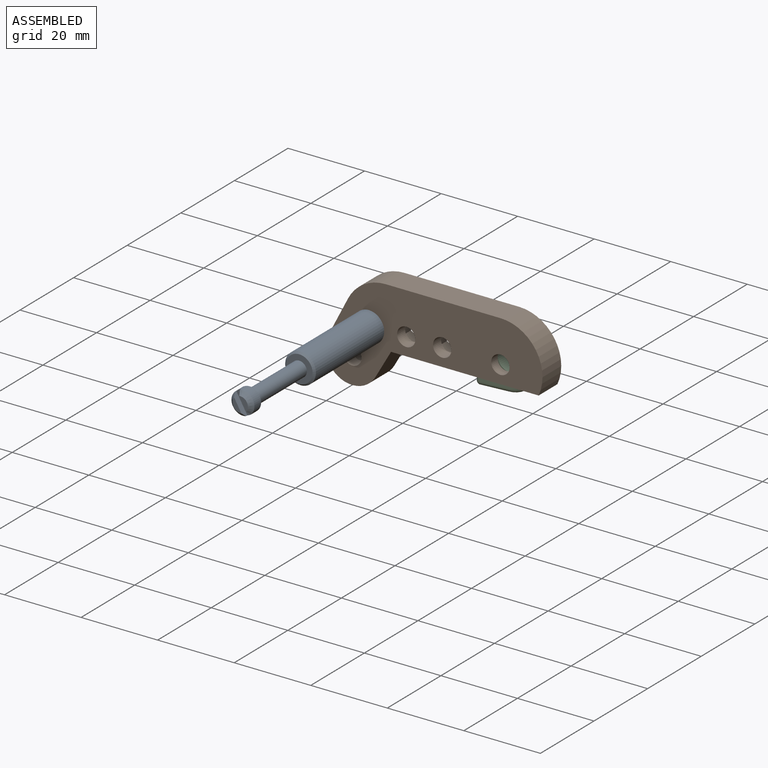
[diagram: assembled view]
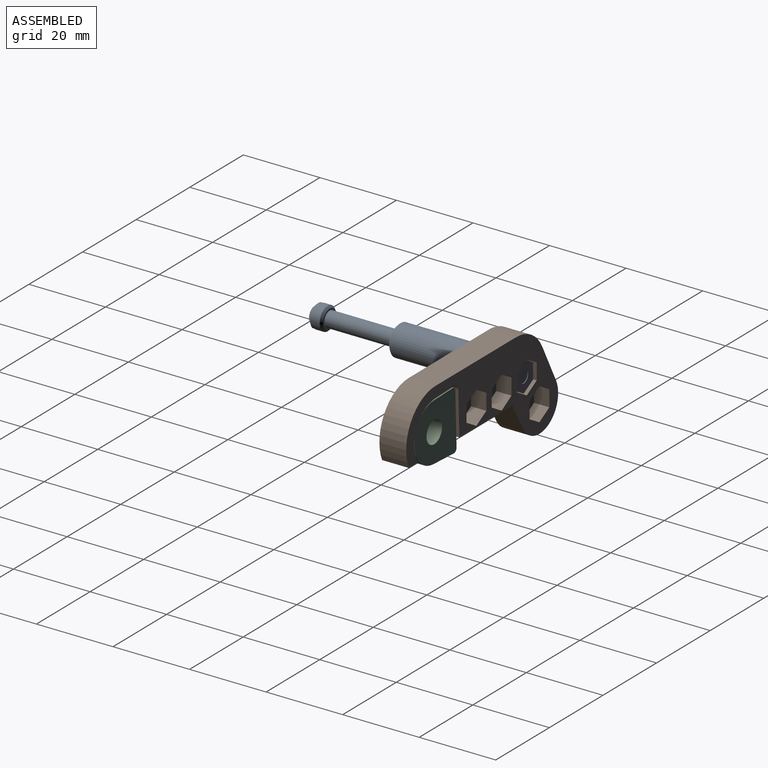
[diagram: assembled view, second angle]
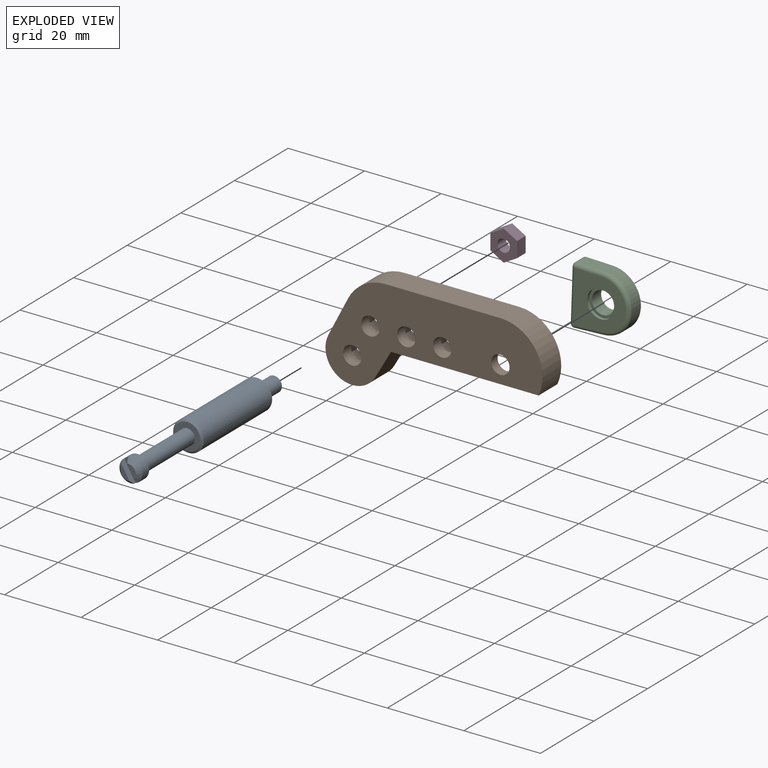
[diagram: exploded view]
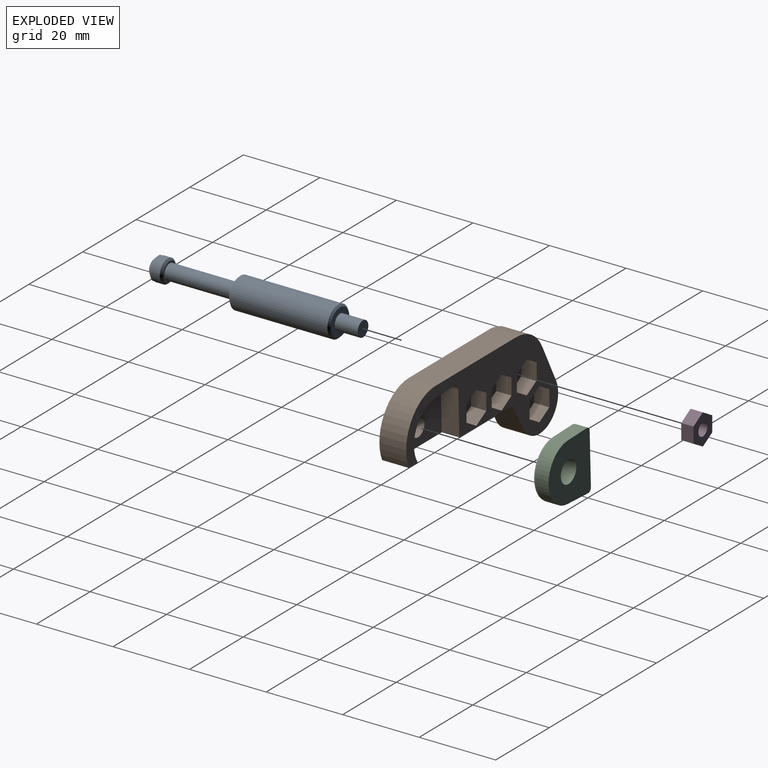
[diagram: exploded view, second angle]
ASSEMBLY  parts=4 mates=5
PART A: 18 faces, bbox 8.1x54.6x8.1 mm
  f0: plane 3.71x1.25mm, normal (0,-1,0), area 3.4mm2, adj f12,f17
  f1: cylinder r=3mm len=6mm, axis (0,1,0), area 45.6mm2, adj f2,f11,f12,f15,f16,f17
  f2: cone r=3mm half-angle=45deg, axis (0,1,0), area 8.9mm2, adj f1,f3,f16
  f3: plane 3.71x1.25mm, normal (0,-1,0), area 3.4mm2, adj f2,f16
  f4: plane 4x4mm, normal (0,1,0), area 12.6mm2, adj f5
  f5: cylinder r=2mm len=6mm, axis (0,1,0), area 75.4mm2, adj f4,f6
  f6: plane 7x7mm, normal (0,1,0), area 25.9mm2, adj f5,f13
  f7: cylinder r=4mm len=25.5mm, axis (0,1,0), area 640.9mm2, adj f13,f14
  f8: plane 7x7mm, normal (0,-1,0), area 25.9mm2, adj f9,f14
  f9: cylinder r=2mm len=18mm, axis (0,1,0), area 226.2mm2, adj f8,f10
  f10: plane 5x5mm, normal (0,1,0), area 7.1mm2, adj f9,f11
  f11: cone r=2.5mm half-angle=45deg, axis (0,-1,0), area 12.2mm2, adj f1,f10
  f12: cone r=3mm half-angle=45deg, axis (0,1,0), area 8.9mm2, adj f0,f1,f17
  f13: cone r=3.5mm half-angle=45deg, axis (0,-1,0), area 16.7mm2, adj f6,f7
  f14: cone r=4mm half-angle=45deg, axis (0,1,0), area 16.7mm2, adj f7,f8
  f15: plane 6x1.5mm, normal (0,-1,0), area 8.9mm2, adj f1,f16,f17
  f16: plane 5.88x1.57mm, normal (0,0,1), area 7.7mm2, adj f1,f2,f3,f15
  f17: plane 5.88x1.57mm, normal (0,0,-1), area 7.7mm2, adj f0,f1,f12,f15
PART B: 51 faces, bbox 56.7x7x26.1 mm
  f0: plane 56.7x26.14mm, normal (0,1,0), area 519.7mm2, adj f2,f3,f5,f6,f8,f9,f10,f11
  f1: plane 3x0.02mm, normal (-0.5,0,0.87), area 0.1mm2, adj f4,f34,f35,f40
  f2: cylinder r=11mm len=9.78mm, axis (0,1,0), area 84.3mm2, adj f0,f4,f9,f36
  f3: plane 38.56x7mm, normal (0,0,-1), area 198.6mm2, adj f0,f4,f5,f6,f7,f8,f38
  f4: plane 56.7x26.14mm, normal (0,-1,0), area 815.6mm2, adj f1,f2,f3,f8,f9,f12,f34,f35
  f5: cylinder r=8.1mm len=12.69mm, axis (0,1,0), area 79.9mm2, adj f0,f3,f7,f10
  f6: plane 11.36x4.6mm, normal (1,0,-0.03), area 52.3mm2, adj f0,f3,f7,f11
  f7: plane 16.94x12.9mm, normal (0,1,0), area 178.6mm2, adj f3,f5,f6,f10,f11,f12
  f8: cylinder r=11mm len=15.6mm, axis (0,1,0), area 154.2mm2, adj f0,f3,f4,f9
  f9: plane 30x7mm, normal (0,0,1), area 210mm2, adj f0,f2,f4,f8
  f10: plane 7.04x4.6mm, normal (-0.03,0,-1), area 32.4mm2, adj f0,f5,f7,f11
  f11: cylinder r=1.6mm len=4.6mm, axis (0,1,0), area 11.5mm2, adj f0,f6,f7,f10
  f12: cylinder r=2.4mm len=4.8mm, axis (0,1,0), area 36.2mm2, adj f4,f7
  f13: plane 4x3.7mm, normal (0.5,0,0.87), area 17.1mm2, adj f0,f14,f18,f19
  f14: plane 4.27x4mm, normal (1,0,0), area 17.1mm2, adj f0,f13,f15,f19
  f15: plane 4x3.7mm, normal (0.5,0,-0.87), area 17.1mm2, adj f0,f14,f16,f19
  f16: plane 4x3.7mm, normal (-0.5,0,-0.87), area 17.1mm2, adj f0,f15,f17,f19
  f17: plane 4.27x4mm, normal (-1,0,0), area 17.1mm2, adj f0,f16,f18,f19
  f18: plane 4x3.7mm, normal (-0.5,0,0.87), area 17.1mm2, adj f0,f13,f17,f19
  f19: plane 8.54x7.4mm, normal (0,1,0), area 29.3mm2, adj f13,f14,f15,f16,f17,f18,f48
  f20: plane 4x3.7mm, normal (0.5,0,0.87), area 17.1mm2, adj f0,f21,f25,f26
  f21: plane 4.27x4mm, normal (1,0,0), area 17.1mm2, adj f0,f20,f22,f26
  f22: plane 4x3.7mm, normal (0.5,0,-0.87), area 17.1mm2, adj f0,f21,f23,f26
  f23: plane 4x3.7mm, normal (-0.5,0,-0.87), area 17.1mm2, adj f0,f22,f24,f26
  f24: plane 4.27x4mm, normal (-1,0,0), area 17.1mm2, adj f0,f23,f25,f26
  f25: plane 4x3.7mm, normal (-0.5,0,0.87), area 17.1mm2, adj f0,f20,f24,f26
  f26: plane 8.54x7.4mm, normal (0,1,0), area 29.3mm2, adj f20,f21,f22,f23,f24,f25,f47
  f27: plane 4x3.7mm, normal (0.5,0,0.87), area 17.1mm2, adj f0,f28,f32,f33
  f28: plane 4.27x4mm, normal (1,0,0), area 17.1mm2, adj f0,f27,f29,f33
  f29: plane 4x3.7mm, normal (0.5,0,-0.87), area 17.1mm2, adj f0,f28,f30,f33
  f30: plane 4x3.7mm, normal (-0.5,0,-0.87), area 17.1mm2, adj f0,f29,f31,f33
  f31: plane 4.27x4mm, normal (-1,0,0), area 17.1mm2, adj f0,f30,f32,f33
  f32: plane 4x3.7mm, normal (-0.5,0,0.87), area 17.1mm2, adj f0,f27,f31,f33
  f33: plane 8.54x7.4mm, normal (0,1,0), area 29.3mm2, adj f27,f28,f29,f30,f31,f32,f49
  f34: plane 7x0.03mm, normal (0,0,-1), area 0.2mm2, adj f0,f1,f4,f35,f43
  f35: cylinder r=11mm len=7mm, axis (0,1,0), area 0.1mm2, adj f0,f1,f4,f34,f39
  f36: plane 9.97x7mm, normal (-0.89,0,0.46), area 78.6mm2, adj f0,f2,f4,f37
  f37: cylinder r=7mm len=13.06mm, axis (0,1,0), area 151.6mm2, adj f0,f4,f36,f38
  f38: plane 7.04x7mm, normal (0.87,0,-0.5), area 56.9mm2, adj f0,f3,f4,f37
  f39: plane 4x2.41mm, normal (0.5,0,-0.87), area 11.1mm2, adj f0,f35,f40,f44
  f40: plane 8.54x7.4mm, normal (0,1,0), area 29.3mm2, adj f1,f39,f41,f42,f43,f44,f45,f46
  f41: plane 4.27x4mm, normal (-1,0,0), area 17.1mm2, adj f0,f40,f42,f46
  f42: plane 4x3.7mm, normal (-0.5,0,-0.87), area 17.1mm2, adj f0,f40,f41,f43
  f43: plane 4x1.26mm, normal (0.5,0,-0.87), area 5.8mm2, adj f0,f34,f40,f42
  f44: plane 4.27x4mm, normal (1,0,0), area 17.1mm2, adj f0,f39,f40,f45
  f45: plane 4x3.7mm, normal (0.5,0,0.87), area 17.1mm2, adj f0,f40,f44,f46
  f46: plane 4x3.7mm, normal (-0.5,0,0.87), area 17.1mm2, adj f0,f40,f41,f45
  f47: cylinder r=2.4mm len=4.8mm, axis (0,1,0), area 45.2mm2, adj f4,f26
  f48: cylinder r=2.4mm len=4.8mm, axis (0,1,0), area 45.2mm2, adj f4,f19
  f49: cylinder r=2.4mm len=4.8mm, axis (0,1,0), area 45.2mm2, adj f4,f33
  f50: cylinder r=2.4mm len=4.8mm, axis (0,-1,0), area 45.2mm2, adj f4,f40
PART C: 17 faces, bbox 16.4x4.2x16.2 mm
  f0: plane 13.56x3.23mm, normal (-1,0,0.03), area 43.8mm2, adj f1,f5,f7,f11
  f1: cylinder r=1mm len=3.23mm, axis (0,1,0), area 5.3mm2, adj f0,f2,f7,f9
  f2: plane 7.63x3.23mm, normal (0.05,0,-1), area 24.7mm2, adj f1,f3,f7,f8
  f3: cylinder r=7.5mm len=14.99mm, axis (0,1,0), area 74.3mm2, adj f2,f4,f7,f10
  f4: plane 7.04x3.23mm, normal (0.03,0,1), area 22.7mm2, adj f3,f5,f7,f12
  f5: cylinder r=1mm len=3.23mm, axis (0,1,0), area 5.1mm2, adj f0,f4,f7,f13
  f6: plane 13.82x13.56mm, normal (0,-1,0), area 119.7mm2, adj f8,f10,f11,f12,f16
  f7: plane 15.82x15.56mm, normal (0,1,0), area 185.3mm2, adj f0,f1,f2,f3,f4,f5,f14
  f8: cylinder r=1mm len=7.68mm, axis (-1,0,-0.05), area 12mm2, adj f2,f6,f9,f10
  f9: sphere r=1mm, area 1.7mm2, adj f1,f8,f11
  f10: torus R=6.5mm, axis (0,-1,0), area 34.4mm2, adj f3,f6,f8,f12
  f11: cylinder r=1mm len=13.59mm, axis (0.03,0,1), area 21.3mm2, adj f0,f6,f9,f13
  f12: cylinder r=1mm len=7.07mm, axis (1,0,-0.03), area 11.1mm2, adj f4,f6,f10,f13
  f13: sphere r=1mm, area 1.6mm2, adj f5,f11,f12
  f14: cylinder r=2.9mm len=5.8mm, axis (0,-1,0), area 62.5mm2, adj f7,f15
  f15: plane 7.2x7.2mm, normal (0,-1,0), area 14.3mm2, adj f14,f16
  f16: cylinder r=3.6mm len=7.2mm, axis (0,-1,0), area 18.1mm2, adj f6,f15
PART D: 9 faces, bbox 8.1x3.2x7 mm
  f0: plane 4.04x3.2mm, normal (0,0,-1), area 12.9mm2, adj f1,f5,f6,f7
  f1: plane 3.5x3.2mm, normal (-0.87,0,-0.5), area 12.9mm2, adj f0,f2,f6,f7
  f2: plane 3.5x3.2mm, normal (-0.87,0,0.5), area 12.9mm2, adj f1,f3,f6,f7
  f3: plane 4.04x3.2mm, normal (0,0,1), area 12.9mm2, adj f2,f4,f6,f7
  f4: plane 3.5x3.2mm, normal (0.87,0,0.5), area 12.9mm2, adj f3,f5,f6,f7
  f5: plane 3.5x3.2mm, normal (0.87,0,-0.5), area 12.9mm2, adj f0,f4,f6,f7
  f6: plane 8.08x7mm, normal (0,1,0), area 33.9mm2, adj f0,f1,f2,f3,f4,f5,f8
  f7: plane 8.08x7mm, normal (0,-1,0), area 33.9mm2, adj f0,f1,f2,f3,f4,f5,f8
  f8: cylinder r=1.65mm len=3.3mm, axis (0,-1,0), area 33.2mm2, adj f6,f7
PLACE A rot(axis=(0,1,0),60deg) t=(-53.72,-6.51,4.24)mm
PLACE B t=(-28.5,-5.51,-15.78)mm
PLACE C t=(-28.5,-5.88,-15.78)mm fixed
PLACE D rot(axis=(0.71,0,-0.71),180deg) t=(-53.72,18.69,4.24)mm
MATE revolute B.f5 <-> C.f3  axis (0,1,0) through (-19.72,-10.11,4.24)mm
MATE revolute D.f8 <-> B.f47  axis (0,-1,0) through (-53.72,-9.51,4.24)mm
MATE revolute A.f1 <-> B.f47  axis (0,1,0) through (-53.72,-12.51,4.24)mm
MATE parallel C.f4 <-> B.f10  axis (0.03,0,1) through (-23.02,-7.5,11.84)mm
MATE parallel D.f3 <-> B.f21  axis (-1,0,0) through (-57.22,-7.91,4.24)mm
